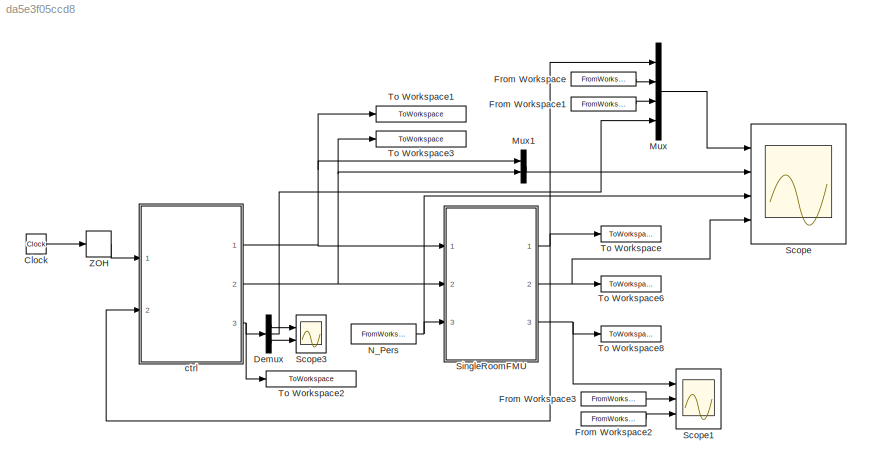
MODEL slx_da5e3f05ccd8
KIND model
CONFIG AbsTol = auto
CONFIG EnableMultiTasking = off
CONFIG FixedStep = 1
CONFIG MaxStep = 3600
CONFIG MinStep = auto
CONFIG RelTol = 1e-3
CONFIG SampleTimeConstraint = Unconstrained
CONFIG SolverName = ode45
CONFIG StartTime = 0.0
CONFIG StopTime = 3600*24
BLOCK [Clock] Clock
BLOCK [Demux] Demux
  Outputs = 3
  Ports = [1, 3]
BLOCK [FromWorkspace] From Workspace
  SampleTime = P.T_s*60
  VariableName = In.T_ref_lower
BLOCK [FromWorkspace] From Workspace1
  SampleTime = P.T_s*60
  VariableName = In.T_ref_upper
BLOCK [FromWorkspace] From Workspace2
  SampleTime = P.T_s*60
  VariableName = In.P_sun
BLOCK [FromWorkspace] From Workspace3
  SampleTime = P.T_s*60
  VariableName = In.T_out
BLOCK [Mux] Mux
  DisplayOption = bar
  Ports = [4, 1]
BLOCK [Mux] Mux1
  DisplayOption = bar
  Inputs = 2
  Ports = [2, 1]
BLOCK [FromWorkspace] N_Pers
  OutDataTypeStr = double
  SampleTime = P.T_s*60
  VariableName = In.N_pers
BLOCK [Scope] Scope
  Floating = off
  NumInputPorts = 4
  Ports = [4]
  ScopeSpecificationString = Simulink.scopes.TimeScopeBlockCfg('CurrentConfiguration', extmgr.ConfigurationSet(extmgr.Configuration('Core','General UI',true),extmgr.Configuration('Core','Source UI',true),extmgr.Configuration('Sources','WiredSimulink',true),extmgr.Configuration('Visuals','Time Domain',true,'SerializedDisplays',{struct('MinYLimReal','14.1375','MaxYLimReal','31.7625','YLabelReal','','MinYLimMag','14.1375','MaxYL...<+3483ch>
BLOCK [Scope] Scope1
  Floating = off
  NumInputPorts = 3
  Ports = [3]
  ScopeSpecificationString = Simulink.scopes.TimeScopeBlockCfg('CurrentConfiguration', extmgr.ConfigurationSet(extmgr.Configuration('Core','General UI',true),extmgr.Configuration('Core','Source UI',true),extmgr.Configuration('Sources','WiredSimulink',true,'DataLoggingVariableName','ScopeData1'),extmgr.Configuration('Visuals','Time Domain',true,'SerializedDisplays',{struct('MinYLimReal','28.975','MaxYLimReal','40.225','YLabelR...<+2909ch>
BLOCK [Scope] Scope3
  Floating = off
  NumInputPorts = 2
  Ports = [2]
  ScopeSpecificationString = Simulink.scopes.TimeScopeBlockCfg('CurrentConfiguration', extmgr.ConfigurationSet(extmgr.Configuration('Core','General UI',true),extmgr.Configuration('Core','Source UI',true),extmgr.Configuration('Sources','WiredSimulink',true,'DataLoggingVariableName','ScopeData1'),extmgr.Configuration('Visuals','Time Domain',true,'SerializedDisplays',{struct('MinYLimReal','-1.38071','MaxYLimReal','1.29012','YLab...<+1505ch>
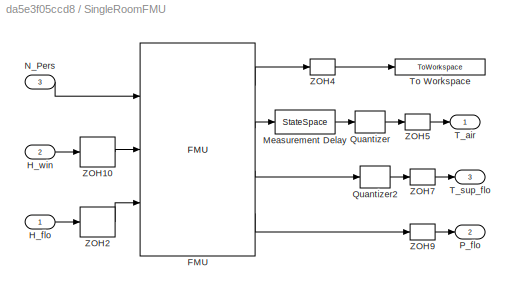
BLOCK [SubSystem] SingleRoomFMU
  Ports = [3, 3]
  RequestExecContextInheritance = off
BLOCK [FMU] SingleRoomFMU/FMU
  Ceil = struct('absIR_a',0.9,'absIR_b',0.9,'absSol_a',0.5,'absSol_b',0.5,'roughness_a',int32(3))
  Ceiling = struct('T_a_start',293.15,'T_b_start',293.15)
  Cw = struct('k',4.184)
  DeltaTflo = struct('k1',1,'k2',-1)
  FMUDebugLogging = on
  FMUMode = ModelExchange
  FMUName = SingleRoom.fmu
  Flo = struct('absIR_a',0.9,'absIR_b',0.9,'absSol_a',0.5,'absSol_b',0.5,'roughness_a',int32(3))
  FloHeat = struct('sysTyp',int32(2),'T_a_start',293.15,'T_b_start',293.15,'p_start',300000,'T_start',293.15,'X_start',[1],'mSenFac',1,'deltaM',0.1,'sla',struct('mSenFac',1))
  HcvFlo = struct('m',1.1,'TRoo_nominal',293.15,'TOut_nominal',258.15,'dTOutHeaBal',0)
  Iw = struct('absIR_a',0.9,'absIR_b',0.9,'absSol_a',0.5,'absSol_b',0.5,'roughness_a',int32(3))
  MaskDisplay = disp('SingleRoom');\nport_label('output',1,'Wb');\nport_label('output',2,'T_room');\nport_label('output',3,'T_sup_flo');\nport_label('output',4,'P_flo');\nport_label('input',1,'N_Pers');\nport_label('input',2,'H_win');\nport_label('input',3,'H_flo');
  MaskPromptString = system|h_room[m]Height of room|h_win[m]Height of Window|w_win[m]Width of Window|T_room_nominal[K]Nominal room temperature|dp_valve_flo_nominal[Pa]Nom. pressure loss of floor heating|p_sink_flo[Pa]Pressure of floor heating sink|Tsup_flo_coolSupply temp. of cooling during summerdays [C]|T_cool_startdayStartday of cooling [day of year]|T_cool_enddayEndday of cooling [day of year]|Roo|WeaData|WallNort...<+101ch>
  MaskType = SingleRoom [Model Exchange, v2.0]
  MultiThreadCoSim = off
  Ow = struct('absIR_a',0.9,'absIR_b',0.9,'absSol_a',0.5,'absSol_b',0.5,'roughness_a',int32(3))
  Pip = struct('dOut',0.025,'d',983,'k',0.35)
  Ports = [3, 4]
  Roo = struct('lat',0.91664692314742,'conExtWin',[struct('glaSys',struct('haveControllableWindow',boolean(false)),'win',struct('glaUns',struct('glass',[struct('T0',293.15),struct('T0',293.15)],'gas',[struct('T0',293.15)]),'glaSha',struct('glass',[struct('T0',293.15),struct('T0',293.15)],'gas',[struct('T0',293.15)])))],'hIntFixed',3.0,'hExtFixed',10.0,'bouConExtWin',struct('conPar',[struct('ove',struct('d...<+320ch>
  SinFlo = struct('X',[1])
  Sou = struct('X',[1])
  T_cool_endday = 273
  T_cool_startday = 120
  T_room_nominal = 295.15
  TemTab = struct('verboseRead',boolean(true),'columns',[int32(2),int32(3),int32(4),int32(5),int32(6)],'offset',[0],'startTime',0,'timeEvents',int32(1))
  Tsup_flo_cool = 18
  Val = struct('deltaM',0.02,'rhoStd',995.586,'riseTime',120,'y_start',1,'l',0.0001,'R',50,'delta0',0.01)
  WallEast = struct('T_a_start',293.15,'T_b_start',293.15)
  WallNorth = struct('T_a_start',293.15,'T_b_start',293.15)
  WallSouth = struct('T_a_start',293.15,'T_b_start',293.15)
  WeaData = struct('pAtm',101325,'TDryBul',293.15,'TDewPoi',283.15,'TBlaSky',273.15,'relHum',0.5,'winSpe',1,'winDir',1.0,'HInfHor',0.0,'ceiHei',20000,'totSkyCov',0.5,'opaSkyCov',0.5)
  Win_2 = struct('glass',[struct('x_2',0.003,'k',1.0,'tauSol',[0.834],'rhoSol_a',[0.075],'rhoSol_b',[0.075],'tauIR',0.0,'absIR_a',0.84,'absIR_b',0.84),struct('x_2',0.003,'k',1.0,'tauSol',[0.834],'rhoSol_a',[0.075],'rhoSol_b',[0.075],'tauIR',0.0,'absIR_a',0.84,'absIR_b',0.84)],'gas',[struct('x_2',0.0127,'a_k',0.002873,'b_k',7.76E-05,'a_mu',3.723E-06,'b_mu',4.94E-08,'a_c',1002.737,'b_c',0.012324,'MM',0.02897,...<+192ch>
  dp_valve_flo_nominal = 100
  h_room = 3
  h_win = 2
  p_sink_flo = 100000
  system = struct('p_ambient',101325,'T_ambient',293.15,'g',9.80665,'m_flow_start',0,'eps_m_flow',0.0001,'dp_small',1,'m_flow_small',0.01)
  w_win = 6
BLOCK [Inport] SingleRoomFMU/H_flo
BLOCK [Inport] SingleRoomFMU/H_win
  Port = 2
BLOCK [StateSpace] SingleRoomFMU/Measurement Delay
  A = -eye(1)./(P.T_sens*60)
  B = eye(1)./(P.T_sens*60)
  C = eye(1)
  D = zeros(1)
  InitialCondition = 20*ones(1,1)
  Ports = [1, 1]
BLOCK [Inport] SingleRoomFMU/N_Pers
  Port = 3
BLOCK [Outport] SingleRoomFMU/P_flo
  Port = 2
BLOCK [Quantizer] SingleRoomFMU/Quantizer
  QuantizationInterval = P.Q_int
BLOCK [Quantizer] SingleRoomFMU/Quantizer2
  QuantizationInterval = P.Q_int
BLOCK [Outport] SingleRoomFMU/T_air
BLOCK [Outport] SingleRoomFMU/T_sup_flo
  Port = 3
BLOCK [ToWorkspace] SingleRoomFMU/To Workspace
  FixptAsFi = on
  MaxDataPoints = inf
  Ports = [1]
  SampleTime = P.T_s*60
  SaveFormat = Timeseries
  VariableName = Weather
BLOCK [ZeroOrderHold] SingleRoomFMU/ZOH10
  SampleTime = P.T_s*60
BLOCK [ZeroOrderHold] SingleRoomFMU/ZOH2
  SampleTime = P.T_s*60
BLOCK [ZeroOrderHold] SingleRoomFMU/ZOH4
  SampleTime = P.T_s*60
BLOCK [ZeroOrderHold] SingleRoomFMU/ZOH5
  SampleTime = P.T_s*60
BLOCK [ZeroOrderHold] SingleRoomFMU/ZOH7
  SampleTime = P.T_s*60
BLOCK [ZeroOrderHold] SingleRoomFMU/ZOH9
  SampleTime = P.T_s*60
BLOCK [ToWorkspace] To Workspace
  FixptAsFi = on
  MaxDataPoints = inf
  Ports = [1]
  SampleTime = P.T_s*60
  SaveFormat = Timeseries
  VariableName = T_air
BLOCK [ToWorkspace] To Workspace1
  FixptAsFi = on
  MaxDataPoints = inf
  Ports = [1]
  SampleTime = P.T_s*60
  SaveFormat = Timeseries
  VariableName = H_flo
BLOCK [ToWorkspace] To Workspace2
  FixptAsFi = on
  MaxDataPoints = inf
  Ports = [1]
  SampleTime = P.T_s*60
  SaveFormat = Timeseries
  VariableName = varout
BLOCK [ToWorkspace] To Workspace3
  FixptAsFi = on
  MaxDataPoints = inf
  Ports = [1]
  SampleTime = P.T_s*60
  SaveFormat = Timeseries
  VariableName = H_win
BLOCK [ToWorkspace] To Workspace6
  FixptAsFi = on
  MaxDataPoints = inf
  Ports = [1]
  SampleTime = P.T_s*60
  SaveFormat = Timeseries
  VariableName = P_flo
BLOCK [ToWorkspace] To Workspace8
  FixptAsFi = on
  MaxDataPoints = inf
  Ports = [1]
  SampleTime = P.T_s*60
  SaveFormat = Timeseries
  VariableName = T_sup_flo
BLOCK [ZeroOrderHold] ZOH
  SampleTime = P.T_s*60
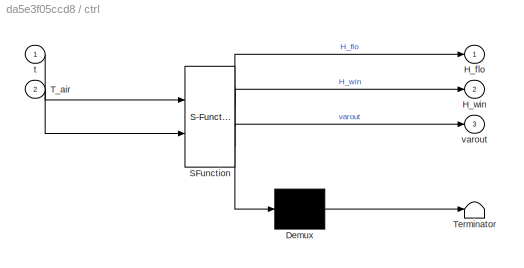
BLOCK [SubSystem] ctrl
  ErrorFcn = Stateflow.Translate.translate
  PermitHierarchicalResolution = ExplicitOnly
  Ports = [2, 3]
  RequestExecContextInheritance = off
  SFBlockType = MATLAB Function
  TreatAsAtomicUnit = on
BLOCK [Demux] ctrl/ Demux 
  Outputs = 1
  Ports = [1, 1]
BLOCK [S-Function] ctrl/ SFunction 
  EnableBusSupport = on
  FunctionName = sf_sfun
  PortCounts = [2 4]
  Ports = [2, 4]
  SFcnIsStateOwnerBlock = off
  SFunctionDeploymentMode = off
  Tag = Stateflow S-Function 2
BLOCK [Terminator] ctrl/ Terminator 
BLOCK [Outport] ctrl/H_flo
BLOCK [Outport] ctrl/H_win
  Port = 2
BLOCK [Inport] ctrl/T_air
  Port = 2
BLOCK [Inport] ctrl/t
BLOCK [Outport] ctrl/varout
  Port = 3
LINE Clock:1 -> ZOH:1
LINE Demux:1 -> Scope3:1
LINE Demux:2 -> Mux:4
LINE Demux:3 -> Scope3:2
LINE From Workspace1:1 -> Mux:3
LINE From Workspace2:1 -> Scope1:3
LINE From Workspace3:1 -> Scope1:2
LINE From Workspace:1 -> Mux:2
LINE Mux1:1 -> Scope:2
LINE Mux:1 -> Scope:1
NET N_Pers:1 -> Scope:3, SingleRoomFMU:3
LINE SingleRoomFMU/FMU:1 -> SingleRoomFMU/ZOH4:1
LINE SingleRoomFMU/FMU:2 -> SingleRoomFMU/Measurement Delay:1
LINE SingleRoomFMU/FMU:3 -> SingleRoomFMU/Quantizer2:1
LINE SingleRoomFMU/FMU:4 -> SingleRoomFMU/ZOH9:1
LINE SingleRoomFMU/H_flo:1 -> SingleRoomFMU/ZOH2:1
LINE SingleRoomFMU/H_win:1 -> SingleRoomFMU/ZOH10:1
LINE SingleRoomFMU/Measurement Delay:1 -> SingleRoomFMU/Quantizer:1
LINE SingleRoomFMU/N_Pers:1 -> SingleRoomFMU/FMU:1
LINE SingleRoomFMU/Quantizer2:1 -> SingleRoomFMU/ZOH7:1
LINE SingleRoomFMU/Quantizer:1 -> SingleRoomFMU/ZOH5:1
LINE SingleRoomFMU/ZOH10:1 -> SingleRoomFMU/FMU:2
LINE SingleRoomFMU/ZOH2:1 -> SingleRoomFMU/FMU:3
LINE SingleRoomFMU/ZOH4:1 -> SingleRoomFMU/To Workspace:1
LINE SingleRoomFMU/ZOH5:1 -> SingleRoomFMU/T_air:1
LINE SingleRoomFMU/ZOH7:1 -> SingleRoomFMU/T_sup_flo:1
LINE SingleRoomFMU/ZOH9:1 -> SingleRoomFMU/P_flo:1
NET SingleRoomFMU:1 -> Mux:1, To Workspace:1, ctrl:2
NET SingleRoomFMU:2 -> Scope:4, To Workspace6:1
NET SingleRoomFMU:3 -> Scope1:1, To Workspace8:1
LINE ZOH:1 -> ctrl:1
NET ctrl:1 -> Mux1:1, SingleRoomFMU:1, To Workspace1:1
NET ctrl:2 -> Mux1:2, SingleRoomFMU:2, To Workspace3:1
NET ctrl:3 -> Demux:1, To Workspace2:1
note: NET lines group one-source signal fan-out (src -> all destinations, sorted); 1:1 wires keep LINE
CHART ctrl states=1 transitions=1
  STATE_LABEL 'eML_blk_kernel()'
  STATE_LABEL "SCRIPT:\nfunction [H_flo, H_win, varout] = ctrl(t,T_air)\n%Calls controller function.\n\nH_flo = NaN;\nH_win = NaN;\nvarout = NaN(3,1);\ncoder.extrinsic('ctrl_fun');\n[H_flo, H_win, varout] = ctrl_fun(t,T_air);\nend\n\n\n"
CHART  states=0 transitions=0
